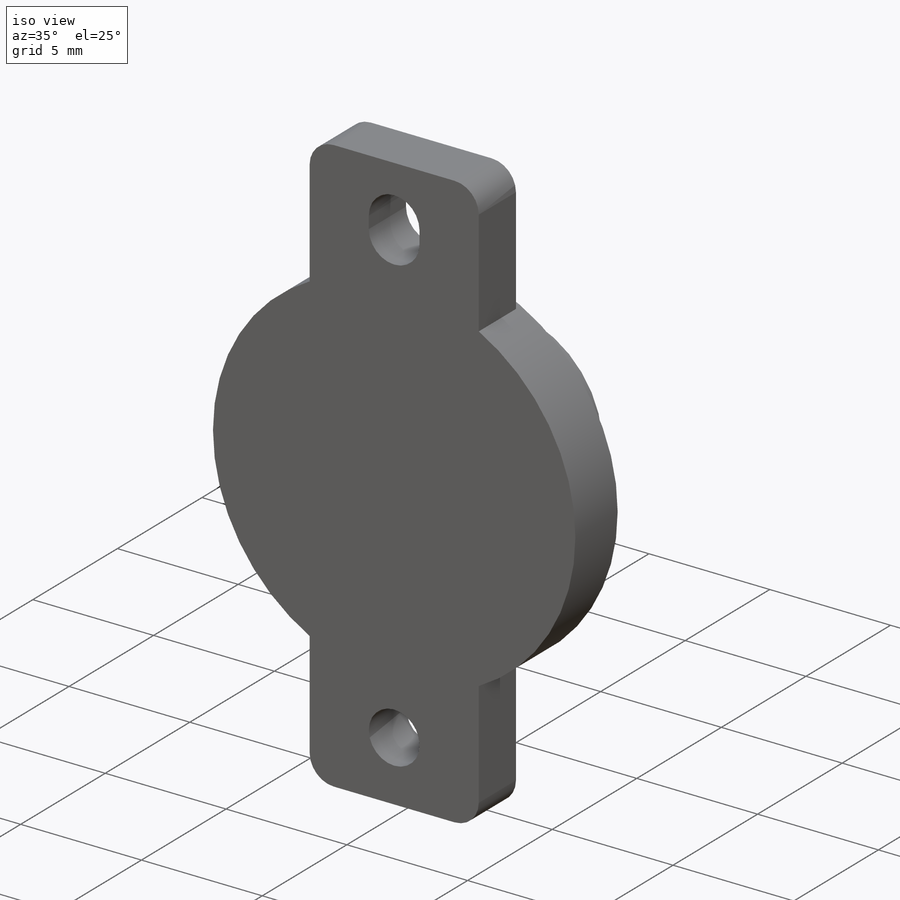
[diagram: iso view]
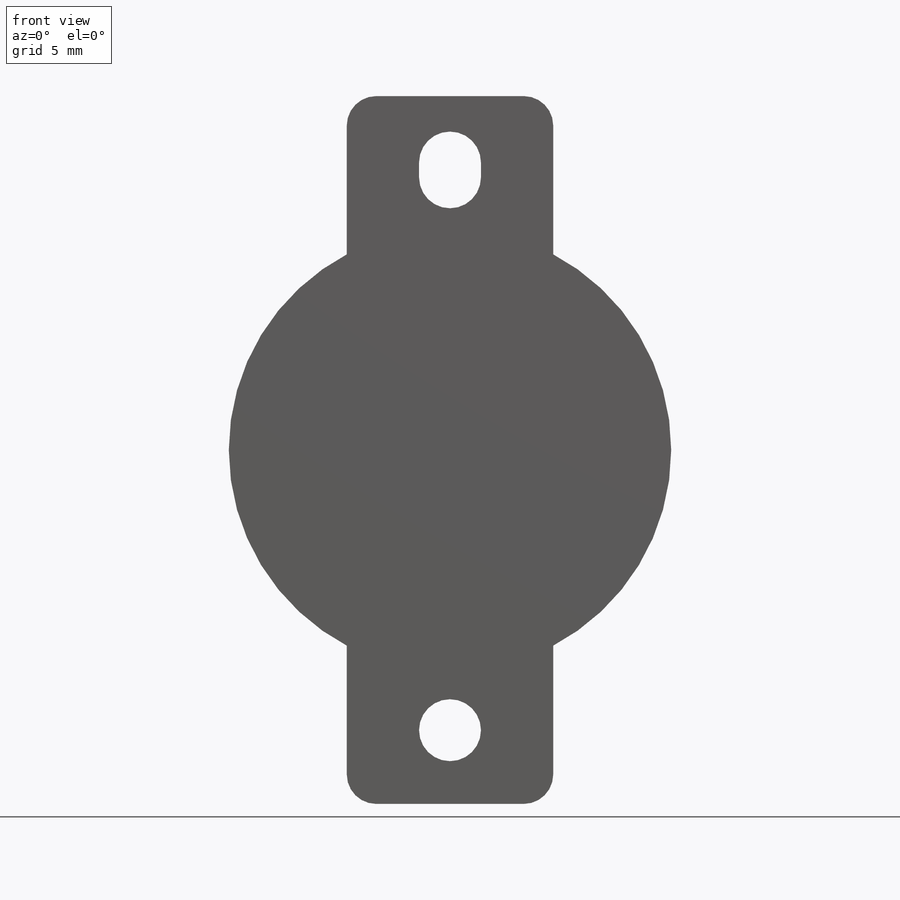
[diagram: front view]
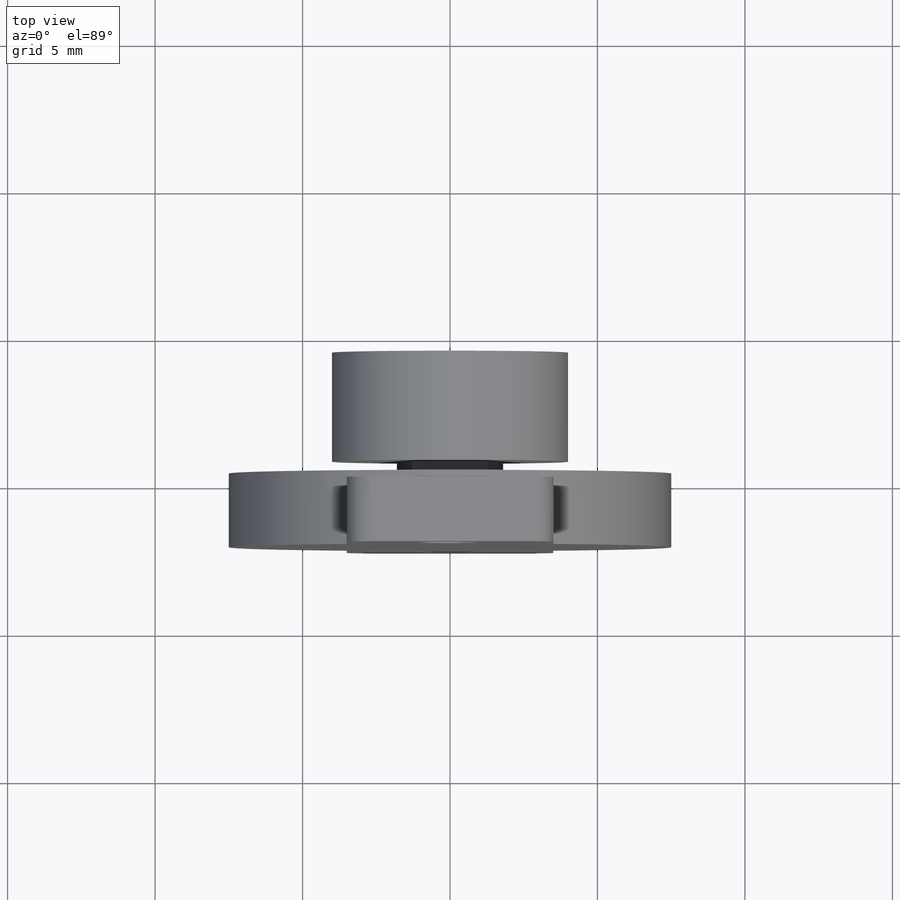
[diagram: top view]
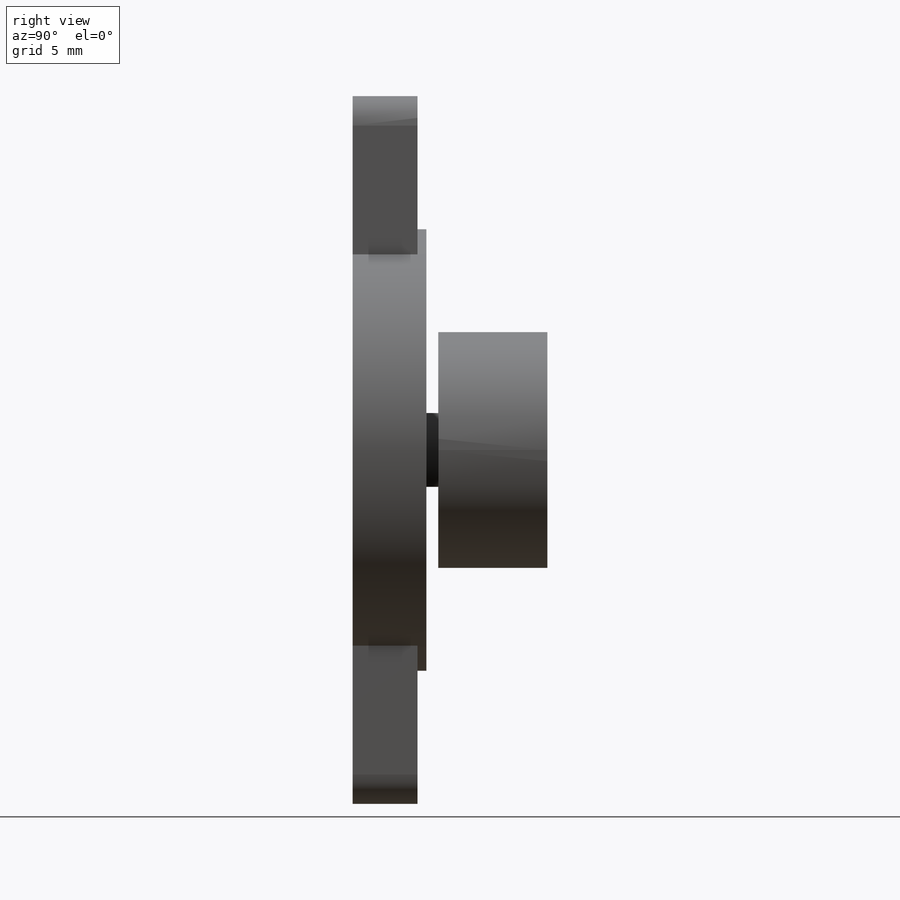
[diagram: right view]
SOLIDWORKS PART (.sldprt)
format: sldprt  version: not decoded by parser v0  size: 201,216 bytes
history: native  units: mm
features: sketch x6, extrude x4, cut_extrude x2, material x1, fillet x1, plane x1 (+12 scaffold rows collapsed)
feature tree (27):
  scaffold x12  (default folders/planes/origin — collapsed)
  material  "Material <not specified>"
  sketch  "Sketch1"  dims[c1.D1=15.0mm c1.D2=~31.875239mm c1.D3=~10.26027mm c2.D2=24.0mm c2.D3=7.0mm c2.D4=3.5mm c2.D5=12.0mm]
  extrude  "Boss-Extrude1"  Depth=2.2mm
  sketch  "Sketch2"  dims[D1=15.0mm]
  extrude  "Boss-Extrude2"  Depth=2.5mm
  sketch  "Sketch3"  dims[D1=2.1mm D2=2.5mm]
  cut_extrude  "Cut-Extrude1"  [1 undecoded]
  sketch  "Sketch4"  dims[D1=2.1mm D2=2.6mm D3=~2.50416mm]
  cut_extrude  "Cut-Extrude2"  [1 undecoded]
  fillet  "Fillet1"  Radius=1mm
  plane  "Plane1"  Offset=6.6mm
  sketch  "Sketch5"  dims[D1=8.0mm]
  extrude  "Boss-Extrude3"  Depth=3.7mm
  sketch  "Sketch6"  dims[c1.D1=3.6mm c1.D3=1.8mm c2.D1=2.5mm c2.D2=1.25mm c3.D1=~2.987401mm c3.D2=~4.840347mm c4.D1=1.25mm c4.D2=2.5mm]
  extrude  "Boss-Extrude4"  [1 undecoded]
decode coverage: 10 of 13 modeling features carry decoded parameters
note: ~ marks probable driven/reference dimensions
note: 3 parameter values undecoded
summary: no parameter record found for 3 features
note: suppression state not decoded; provenance and decode notes live in map.json
